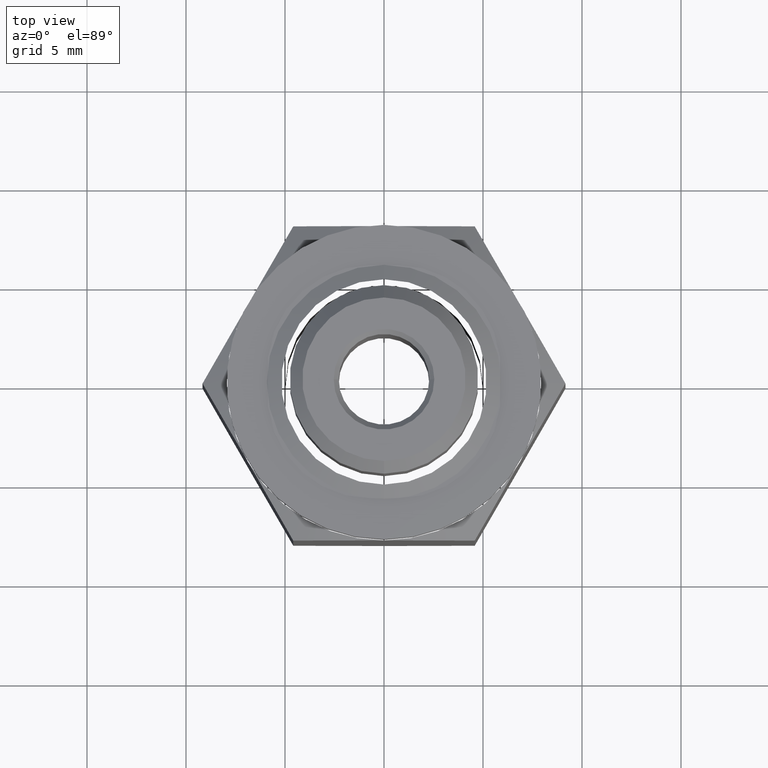
[diagram: clean part render]
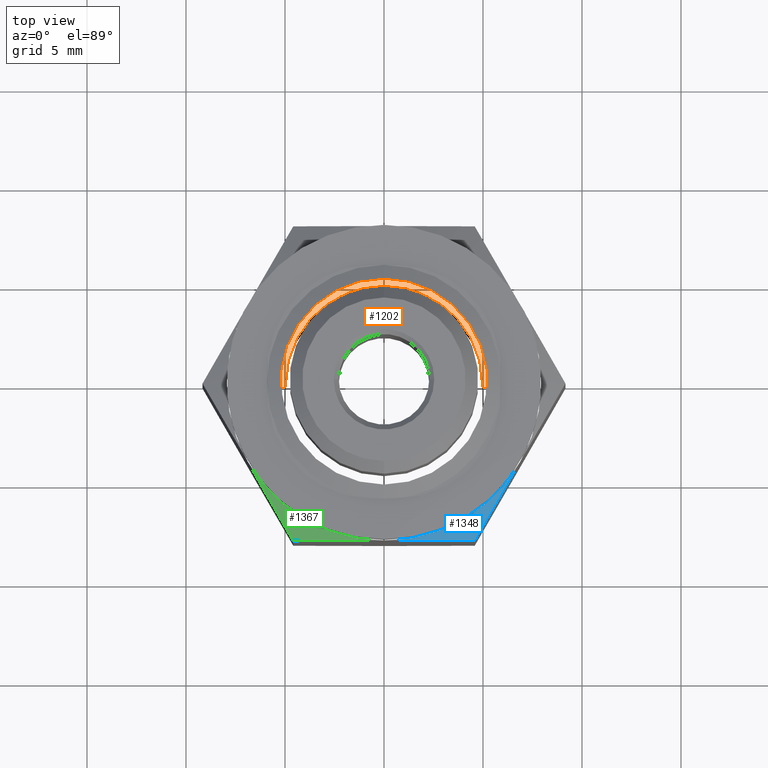
[diagram: same view with three faces highlighted in distinct colors, each labeled with its STEP entity id]
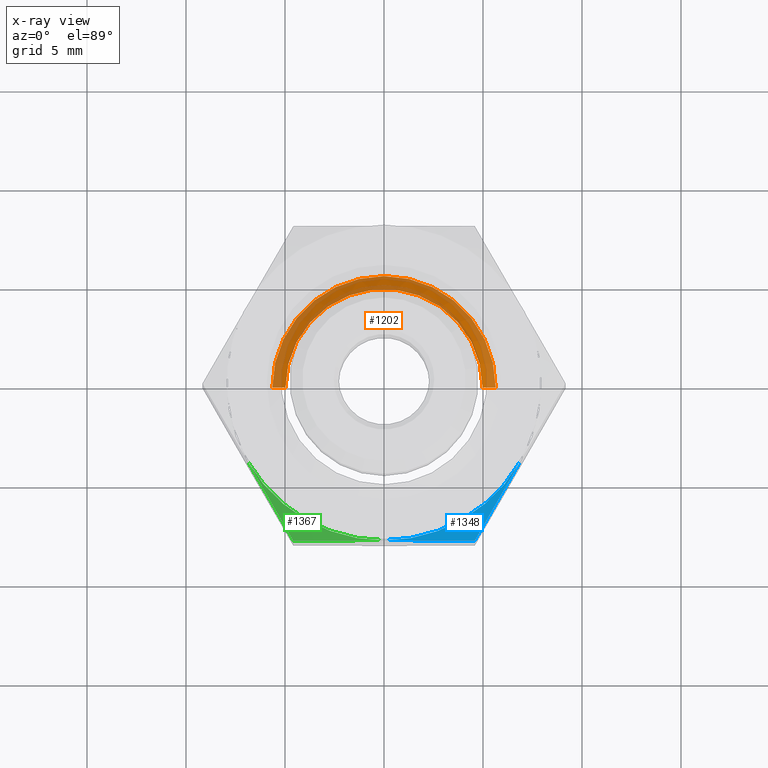
[diagram: x-ray of the same camera — body ghosted, the three highlighted faces saturated]
A machine part, top view with three faces highlighted in distinct colors.
The next image is the same camera in x-ray (body ghosted, the three faces saturated) — at least one of them is partly hidden behind the body in this view.
Their STEP definitions:

[orange] entity #1202 — the highlighted conical surface has half-angle 45 deg.
#531=DIRECTION('',(7.071067811865E-1,0.E0,-7.071067811865E-1));
#532=VECTOR('',#531,3.696480679807E-2);
#533=CARTESIAN_POINT('',(1.96E-1,0.E0,1.366380655522E-1));
#534=LINE('',#533,#532);
#535=DIRECTION('',(-7.071067811865E-1,0.E0,-7.071067811865E-1));
#536=VECTOR('',#535,3.696480679807E-2);
#537=CARTESIAN_POINT('',(-1.96E-1,0.E0,1.366380655522E-1));
#538=LINE('',#537,#536);
#539=CARTESIAN_POINT('',(0.E0,0.E0,1.366380655522E-1));
#540=DIRECTION('',(0.E0,0.E0,1.E0));
#541=DIRECTION('',(1.E0,0.E0,0.E0));
#542=AXIS2_PLACEMENT_3D('',#539,#540,#541);
#552=CARTESIAN_POINT('',(0.E0,0.E0,1.105E-1));
#553=DIRECTION('',(0.E0,0.E0,1.E0));
#554=DIRECTION('',(1.E0,0.E0,0.E0));
#555=AXIS2_PLACEMENT_3D('',#552,#553,#554);
#622=CARTESIAN_POINT('',(1.96E-1,0.E0,1.366380655522E-1));
#624=VERTEX_POINT('',#622);
#625=CARTESIAN_POINT('',(2.221380655522E-1,0.E0,1.105E-1));
#626=VERTEX_POINT('',#625);
#630=CARTESIAN_POINT('',(-1.96E-1,0.E0,1.366380655522E-1));
#632=VERTEX_POINT('',#630);
#633=CARTESIAN_POINT('',(-2.221380655522E-1,0.E0,1.105E-1));
#634=VERTEX_POINT('',#633);
#1190=CARTESIAN_POINT('',(0.E0,0.E0,1.235690327761E-1));
#1191=DIRECTION('',(0.E0,0.E0,-1.E0));
#1192=DIRECTION('',(1.E0,0.E0,0.E0));
#1193=AXIS2_PLACEMENT_3D('',#1190,#1191,#1192);
#1194=CONICAL_SURFACE('',#1193,2.090690327761E-1,4.5E1);
#1195=ORIENTED_EDGE('',*,*,#1079,.T.);
#1197=ORIENTED_EDGE('',*,*,#1196,.T.);
#1198=ORIENTED_EDGE('',*,*,#1082,.F.);
#1199=ORIENTED_EDGE('',*,*,#1176,.F.);
#1200=EDGE_LOOP('',(#1195,#1197,#1198,#1199));
#1201=FACE_OUTER_BOUND('',#1200,.F.);
#543=CIRCLE('',#542,1.96E-1);
#556=CIRCLE('',#555,2.221380655522E-1);
#1079=EDGE_CURVE('',#624,#626,#534,.T.);
#1082=EDGE_CURVE('',#632,#634,#538,.T.);
#1176=EDGE_CURVE('',#624,#632,#543,.T.);
#1196=EDGE_CURVE('',#626,#634,#556,.T.);
#1202=ADVANCED_FACE('',(#1201),#1194,.F.);

[blue] entity #1348 — the highlighted conical surface has half-angle 60 deg.
#250=CARTESIAN_POINT('',(-3.403681971502E-11,-3.125E-1,6.420000000004E-1));
#252=CARTESIAN_POINT('',(-3.403681971502E-11,-3.125E-1,6.420000000004E-1));
#253=CARTESIAN_POINT('',(1.179003376579E-2,-3.125E-1,6.420000000004E-1));
#254=CARTESIAN_POINT('',(3.539010301308E-2,-3.125E-1,6.412260444374E-1));
#255=CARTESIAN_POINT('',(7.078380892595E-2,-3.125E-1,6.377895415508E-1));
#256=CARTESIAN_POINT('',(1.063703877697E-1,-3.125E-1,6.321683583414E-1));
#257=CARTESIAN_POINT('',(1.425054379211E-1,-3.125E-1,6.244410530485E-1));
#258=CARTESIAN_POINT('',(1.676439540257E-1,-3.125E-1,6.177773181294E-1));
#259=CARTESIAN_POINT('',(1.804219591218E-1,-3.125E-1,6.140886257884E-1));
#283=CARTESIAN_POINT('',(1.804219591218E-1,-3.125E-1,6.140886257884E-1));
#284=CARTESIAN_POINT('',(1.868090920180E-1,-3.014371613090E-1,
6.177762386854E-1));
#285=CARTESIAN_POINT('',(1.993764199397E-1,-2.796699108332E-1,
6.244395216417E-1));
#286=CARTESIAN_POINT('',(2.174576785120E-1,-2.483522523212E-1,
6.321723768677E-1));
#287=CARTESIAN_POINT('',(2.352492559712E-1,-2.175363362151E-1,
6.377914403003E-1));
#288=CARTESIAN_POINT('',(2.529421511136E-1,-1.868913428954E-1,
6.412264455293E-1));
#289=CARTESIAN_POINT('',(2.647394383733E-1,-1.664578419702E-1,
6.419999999990E-1));
#290=CARTESIAN_POINT('',(2.706329386683E-1,-1.562500000249E-1,
6.420000000003E-1));
#567=CARTESIAN_POINT('',(0.E0,0.E0,6.42E-1));
#568=DIRECTION('',(0.E0,0.E0,1.E0));
#569=DIRECTION('',(0.E0,-1.E0,0.E0));
#570=AXIS2_PLACEMENT_3D('',#567,#568,#569);
#660=VERTEX_POINT('',#250);
#661=VERTEX_POINT('',#259);
#662=VERTEX_POINT('',#290);
#1337=CARTESIAN_POINT('',(0.E0,0.E0,6.280443128942E-1));
#1338=DIRECTION('',(0.E0,0.E0,-1.E0));
#1339=DIRECTION('',(5.E-1,-8.660254037844E-1,0.E0));
#1340=AXIS2_PLACEMENT_3D('',#1337,#1338,#1339);
#1341=CONICAL_SURFACE('',#1340,3.366719591218E-1,6.E1);
#1343=ORIENTED_EDGE('',*,*,#1342,.T.);
#1344=ORIENTED_EDGE('',*,*,#812,.F.);
#1345=ORIENTED_EDGE('',*,*,#788,.F.);
#1346=EDGE_LOOP('',(#1343,#1344,#1345));
#1347=FACE_OUTER_BOUND('',#1346,.F.);
#260=B_SPLINE_CURVE_WITH_KNOTS('',3,(#252,#253,#254,#255,#256,#257,#258,#259),
.UNSPECIFIED.,.F.,.F.,(4,1,1,1,1,4),(0.E0,2.E-1,4.E-1,6.E-1,8.E-1,1.E0),
.UNSPECIFIED.);
#291=B_SPLINE_CURVE_WITH_KNOTS('',3,(#283,#284,#285,#286,#287,#288,#289,#290),
.UNSPECIFIED.,.F.,.F.,(4,1,1,1,1,4),(0.E0,2.E-1,4.E-1,6.E-1,8.E-1,1.E0),
.UNSPECIFIED.);
#571=CIRCLE('',#570,3.125E-1);
#788=EDGE_CURVE('',#660,#661,#260,.T.);
#812=EDGE_CURVE('',#661,#662,#291,.T.);
#1342=EDGE_CURVE('',#660,#662,#571,.T.);
#1348=ADVANCED_FACE('',(#1347),#1341,.T.);

[green] entity #1367 — the highlighted conical surface has half-angle 60 deg.
#210=CARTESIAN_POINT('',(-2.706329386987E-1,-1.562499999722E-1,
6.420000000003E-1));
#212=CARTESIAN_POINT('',(-2.706329386987E-1,-1.562499999722E-1,
6.420000000003E-1));
#213=CARTESIAN_POINT('',(-2.647379218002E-1,-1.664604687518E-1,
6.420000000003E-1));
#214=CARTESIAN_POINT('',(-2.529378871759E-1,-1.868987282523E-1,
6.412260444374E-1));
#215=CARTESIAN_POINT('',(-2.352410342197E-1,-2.175505767064E-1,
6.377895415508E-1));
#216=CARTESIAN_POINT('',(-2.174477447978E-1,-2.483694580190E-1,
6.321683583414E-1));
#217=CARTESIAN_POINT('',(-1.993802197221E-1,-2.796633294171E-1,
6.244410530485E-1));
#218=CARTESIAN_POINT('',(-1.868109616698E-1,-3.014339229771E-1,
6.177773181294E-1));
#219=CARTESIAN_POINT('',(-1.804219591218E-1,-3.125E-1,6.140886257884E-1));
#243=CARTESIAN_POINT('',(-1.804219591218E-1,-3.125E-1,6.140886257884E-1));
#244=CARTESIAN_POINT('',(-1.676476933301E-1,-3.125E-1,6.177762386852E-1));
#245=CARTESIAN_POINT('',(-1.425130374881E-1,-3.125E-1,6.244395216412E-1));
#246=CARTESIAN_POINT('',(-1.063505203457E-1,-3.125E-1,6.321723768668E-1));
#247=CARTESIAN_POINT('',(-7.076736542900E-2,-3.125E-1,6.377914402994E-1));
#248=CARTESIAN_POINT('',(-3.538157514809E-2,-3.125E-1,6.412264455286E-1));
#249=CARTESIAN_POINT('',(-1.178700062577E-2,-3.125E-1,6.419999999989E-1));
#250=CARTESIAN_POINT('',(-3.403681971502E-11,-3.125E-1,6.420000000004E-1));
#572=CARTESIAN_POINT('',(0.E0,0.E0,6.42E-1));
#573=DIRECTION('',(0.E0,0.E0,1.E0));
#574=DIRECTION('',(-8.660254037844E-1,-5.E-1,0.E0));
#575=AXIS2_PLACEMENT_3D('',#572,#573,#574);
#658=VERTEX_POINT('',#210);
#659=VERTEX_POINT('',#219);
#660=VERTEX_POINT('',#250);
#1356=CARTESIAN_POINT('',(0.E0,0.E0,6.280443128942E-1));
#1357=DIRECTION('',(0.E0,0.E0,-1.E0));
#1358=DIRECTION('',(5.E-1,-8.660254037844E-1,0.E0));
#1359=AXIS2_PLACEMENT_3D('',#1356,#1357,#1358);
#1360=CONICAL_SURFACE('',#1359,3.366719591218E-1,6.E1);
#1361=ORIENTED_EDGE('',*,*,#762,.F.);
#1363=ORIENTED_EDGE('',*,*,#1362,.T.);
#1364=ORIENTED_EDGE('',*,*,#786,.F.);
#1365=EDGE_LOOP('',(#1361,#1363,#1364));
#1366=FACE_OUTER_BOUND('',#1365,.F.);
#220=B_SPLINE_CURVE_WITH_KNOTS('',3,(#212,#213,#214,#215,#216,#217,#218,#219),
.UNSPECIFIED.,.F.,.F.,(4,1,1,1,1,4),(0.E0,2.E-1,4.E-1,6.E-1,8.E-1,1.E0),
.UNSPECIFIED.);
#251=B_SPLINE_CURVE_WITH_KNOTS('',3,(#243,#244,#245,#246,#247,#248,#249,#250),
.UNSPECIFIED.,.F.,.F.,(4,1,1,1,1,4),(0.E0,2.E-1,4.E-1,6.E-1,8.E-1,1.E0),
.UNSPECIFIED.);
#576=CIRCLE('',#575,3.125E-1);
#762=EDGE_CURVE('',#658,#659,#220,.T.);
#786=EDGE_CURVE('',#659,#660,#251,.T.);
#1362=EDGE_CURVE('',#658,#660,#576,.T.);
#1367=ADVANCED_FACE('',(#1366),#1360,.T.);